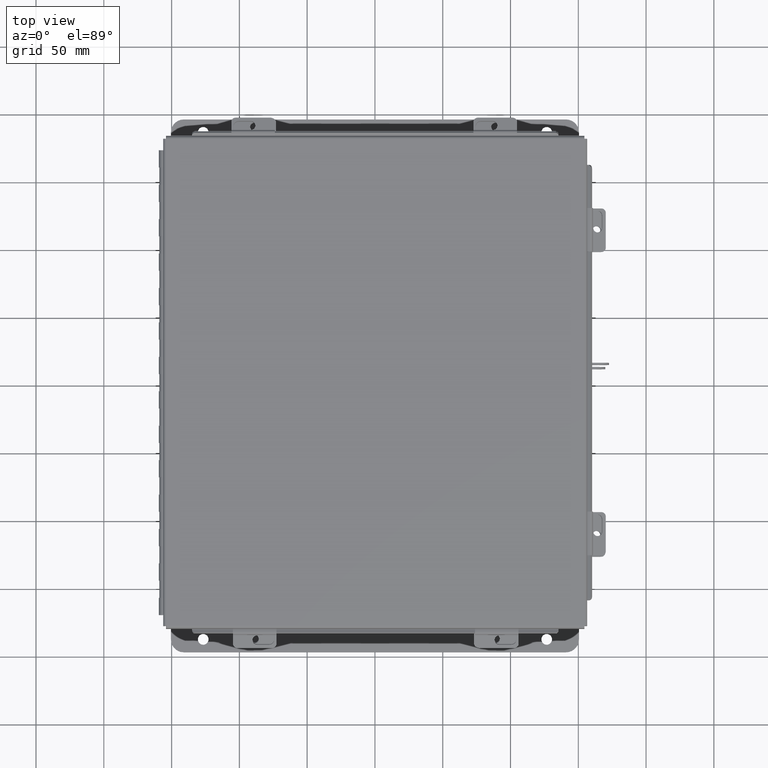
[diagram: clean part render]
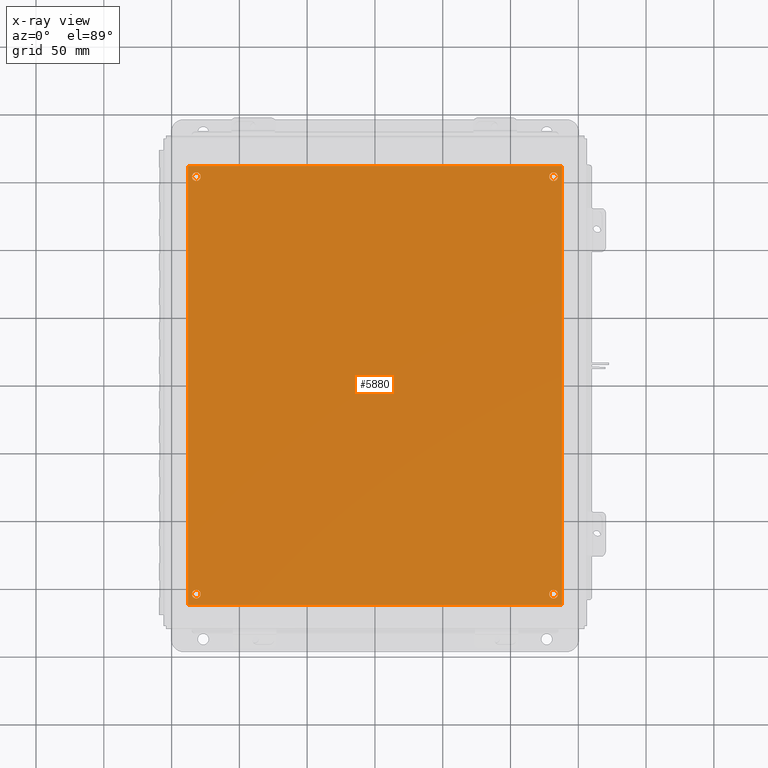
[diagram: x-ray — body ghosted, one internal face saturated and labeled with its STEP entity id]
A machine part, top view, then the same camera in x-ray: the body is ghosted and one INTERNAL B-rep face — a face not visible from any outside direction — is saturated and labeled: STEP entity #5880.
In plain terms, the highlighted planar face has unit normal (0, 0, -1).
Its self-contained STEP definition (entity closure, byte-faithful):
#156 = PLANE ( 'NONE',  #8368 ) ;
#178 = FACE_OUTER_BOUND ( 'NONE', #12491, .T. ) ;
#274 = VERTEX_POINT ( 'NONE', #7014 ) ;
#504 = VERTEX_POINT ( 'NONE', #6120 ) ;
#764 = CARTESIAN_POINT ( 'NONE',  ( 10.62500000000000400, 0.3120000000000036600, -0.07470000000000003000 ) ) ;
#767 = CARTESIAN_POINT ( 'NONE',  ( 10.50000000000000200, 12.43799999999999900, -0.07470000000000003000 ) ) ;
#1137 = DIRECTION ( 'NONE',  ( -0.0000000000000000000, -0.0000000000000000000, 1.000000000000000000 ) ) ;
#1206 = DIRECTION ( 'NONE',  ( -0.0000000000000000000, -0.0000000000000000000, 1.000000000000000000 ) ) ;
#1299 = DIRECTION ( 'NONE',  ( -1.000000000000000000, -0.0000000000000000000, -0.0000000000000000000 ) ) ;
#1346 = CIRCLE ( 'NONE', #10727, 0.1250000000000000600 ) ;
#1401 = CARTESIAN_POINT ( 'NONE',  ( 0.0000000000000000000, 12.75000000000000000, -0.07470000000000003000 ) ) ;
#1601 = CARTESIAN_POINT ( 'NONE',  ( 0.2499999999999998100, 12.43799999999999700, -0.07470000000000003000 ) ) ;
#1995 = AXIS2_PLACEMENT_3D ( 'NONE', #5326, #15551, #6803 ) ;
#2043 = DIRECTION ( 'NONE',  ( -0.0000000000000000000, -0.0000000000000000000, 1.000000000000000000 ) ) ;
#2159 = AXIS2_PLACEMENT_3D ( 'NONE', #10789, #2043, #12263 ) ;
#2170 = ORIENTED_EDGE ( 'NONE', *, *, #4804, .F. ) ;
#2250 = DIRECTION ( 'NONE',  ( -1.000000000000000000, 0.0000000000000000000, 0.0000000000000000000 ) ) ;
#2264 = EDGE_LOOP ( 'NONE', ( #9398, #10212 ) ) ;
#2531 = LINE ( 'NONE', #3623, #9819 ) ;
#2587 = EDGE_CURVE ( 'NONE', #4289, #18574, #5353, .T. ) ;
#2695 = VERTEX_POINT ( 'NONE', #7153 ) ;
#2855 = ORIENTED_EDGE ( 'NONE', *, *, #13032, .F. ) ;
#3057 = DIRECTION ( 'NONE',  ( -1.000000000000000000, 0.0000000000000000000, 0.0000000000000000000 ) ) ;
#3112 = DIRECTION ( 'NONE',  ( -1.000000000000000000, 0.0000000000000000000, -0.0000000000000000000 ) ) ;
#3469 = AXIS2_PLACEMENT_3D ( 'NONE', #14593, #5831, #16058 ) ;
#3507 = DIRECTION ( 'NONE',  ( -0.0000000000000000000, -1.000000000000000000, -0.0000000000000000000 ) ) ;
#3623 = CARTESIAN_POINT ( 'NONE',  ( 10.87500000000000000, 0.0000000000000000000, -0.07470000000000003000 ) ) ;
#3852 = EDGE_CURVE ( 'NONE', #10407, #504, #8913, .T. ) ;
#4087 = FACE_BOUND ( 'NONE', #16853, .T. ) ;
#4173 = CARTESIAN_POINT ( 'NONE',  ( 0.0000000000000000000, 0.0000000000000000000, -0.07470000000000003000 ) ) ;
#4203 = ORIENTED_EDGE ( 'NONE', *, *, #2587, .T. ) ;
#4277 = CIRCLE ( 'NONE', #5967, 0.1249999999999993500 ) ;
#4289 = VERTEX_POINT ( 'NONE', #767 ) ;
#4377 = CIRCLE ( 'NONE', #2159, 0.1249999999999993500 ) ;
#4519 = EDGE_LOOP ( 'NONE', ( #5507, #4691 ) ) ;
#4542 = FACE_BOUND ( 'NONE', #18705, .T. ) ;
#4611 = CARTESIAN_POINT ( 'NONE',  ( 10.62500000000000400, 0.3120000000000036600, -0.07470000000000003000 ) ) ;
#4691 = ORIENTED_EDGE ( 'NONE', *, *, #17573, .T. ) ;
#4804 = EDGE_CURVE ( 'NONE', #504, #11124, #2531, .T. ) ;
#4837 = VECTOR ( 'NONE', #1299, 39.37007874015748100 ) ;
#5071 = DIRECTION ( 'NONE',  ( 0.0000000000000000000, 1.000000000000000000, 0.0000000000000000000 ) ) ;
#5229 = LINE ( 'NONE', #12249, #9072 ) ;
#5291 = LINE ( 'NONE', #18835, #4837 ) ;
#5326 = CARTESIAN_POINT ( 'NONE',  ( 10.62500000000000200, 12.43799999999999900, -0.07470000000000003000 ) ) ;
#5353 = CIRCLE ( 'NONE', #1995, 0.1249999999999993500 ) ;
#5507 = ORIENTED_EDGE ( 'NONE', *, *, #15790, .T. ) ;
#5641 = EDGE_CURVE ( 'NONE', #6445, #2695, #1346, .T. ) ;
#5831 = DIRECTION ( 'NONE',  ( -0.0000000000000000000, -0.0000000000000000000, 1.000000000000000000 ) ) ;
#5880 = ADVANCED_FACE ( 'NONE', ( #15749, #7959, #4542, #4087, #178 ), #156, .T. ) ;
#5967 = AXIS2_PLACEMENT_3D ( 'NONE', #4611, #14848, #6083 ) ;
#6056 = EDGE_CURVE ( 'NONE', #7777, #10407, #5229, .T. ) ;
#6083 = DIRECTION ( 'NONE',  ( -1.000000000000000000, 0.0000000000000000000, 0.0000000000000000000 ) ) ;
#6120 = CARTESIAN_POINT ( 'NONE',  ( 10.87500000000000000, 0.0000000000000000000, -0.07470000000000003000 ) ) ;
#6445 = VERTEX_POINT ( 'NONE', #16740 ) ;
#6803 = DIRECTION ( 'NONE',  ( -1.000000000000000000, 0.0000000000000000000, 0.0000000000000000000 ) ) ;
#6957 = AXIS2_PLACEMENT_3D ( 'NONE', #1601, #11824, #3057 ) ;
#7014 = CARTESIAN_POINT ( 'NONE',  ( 0.1249999999999997900, 12.43799999999999700, -0.07470000000000003000 ) ) ;
#7153 = CARTESIAN_POINT ( 'NONE',  ( 0.1250000000000019200, 0.3120000000000015000, -0.07470000000000003000 ) ) ;
#7777 = VERTEX_POINT ( 'NONE', #1401 ) ;
#7833 = EDGE_CURVE ( 'NONE', #274, #12595, #12574, .T. ) ;
#7959 = FACE_BOUND ( 'NONE', #4519, .T. ) ;
#8368 = AXIS2_PLACEMENT_3D ( 'NONE', #10391, #11874, #3112 ) ;
#8913 = LINE ( 'NONE', #4173, #15809 ) ;
#8969 = CARTESIAN_POINT ( 'NONE',  ( 0.3749999999999998300, 12.43799999999999700, -0.07470000000000003000 ) ) ;
#9072 = VECTOR ( 'NONE', #3507, 39.37007874015748100 ) ;
#9398 = ORIENTED_EDGE ( 'NONE', *, *, #5641, .T. ) ;
#9476 = VERTEX_POINT ( 'NONE', #11476 ) ;
#9819 = VECTOR ( 'NONE', #5071, 39.37007874015748100 ) ;
#9873 = CARTESIAN_POINT ( 'NONE',  ( 0.2500000000000020000, 0.3120000000000015000, -0.07470000000000003000 ) ) ;
#9953 = CARTESIAN_POINT ( 'NONE',  ( 0.2500000000000020000, 0.3120000000000015000, -0.07470000000000003000 ) ) ;
#10212 = ORIENTED_EDGE ( 'NONE', *, *, #14140, .T. ) ;
#10391 = CARTESIAN_POINT ( 'NONE',  ( 0.0000000000000000000, 0.0000000000000000000, -0.07470000000000003000 ) ) ;
#10407 = VERTEX_POINT ( 'NONE', #11731 ) ;
#10555 = CARTESIAN_POINT ( 'NONE',  ( 10.87500000000000000, 12.75000000000000000, -0.07470000000000003000 ) ) ;
#10578 = VERTEX_POINT ( 'NONE', #18013 ) ;
#10727 = AXIS2_PLACEMENT_3D ( 'NONE', #9873, #1137, #11360 ) ;
#10789 = CARTESIAN_POINT ( 'NONE',  ( 10.62500000000000200, 12.43799999999999900, -0.07470000000000003000 ) ) ;
#10995 = DIRECTION ( 'NONE',  ( -0.0000000000000000000, -0.0000000000000000000, 1.000000000000000000 ) ) ;
#11124 = VERTEX_POINT ( 'NONE', #10555 ) ;
#11360 = DIRECTION ( 'NONE',  ( -1.000000000000000000, 0.0000000000000000000, 0.0000000000000000000 ) ) ;
#11433 = DIRECTION ( 'NONE',  ( -1.000000000000000000, 0.0000000000000000000, 0.0000000000000000000 ) ) ;
#11476 = CARTESIAN_POINT ( 'NONE',  ( 10.75000000000000400, 0.3120000000000036600, -0.07470000000000003000 ) ) ;
#11731 = CARTESIAN_POINT ( 'NONE',  ( 0.0000000000000000000, 0.0000000000000000000, -0.07470000000000003000 ) ) ;
#11824 = DIRECTION ( 'NONE',  ( -0.0000000000000000000, -0.0000000000000000000, 1.000000000000000000 ) ) ;
#11874 = DIRECTION ( 'NONE',  ( 0.0000000000000000000, 0.0000000000000000000, -1.000000000000000000 ) ) ;
#11886 = CIRCLE ( 'NONE', #17350, 0.1249999999999993500 ) ;
#12015 = EDGE_CURVE ( 'NONE', #12595, #274, #16528, .T. ) ;
#12249 = CARTESIAN_POINT ( 'NONE',  ( 0.0000000000000000000, 0.0000000000000000000, -0.07470000000000003000 ) ) ;
#12263 = DIRECTION ( 'NONE',  ( -1.000000000000000000, 0.0000000000000000000, 0.0000000000000000000 ) ) ;
#12491 = EDGE_LOOP ( 'NONE', ( #14696, #2855, #2170, #17802 ) ) ;
#12574 = CIRCLE ( 'NONE', #6957, 0.1250000000000000000 ) ;
#12595 = VERTEX_POINT ( 'NONE', #8969 ) ;
#13032 = EDGE_CURVE ( 'NONE', #11124, #7777, #5291, .T. ) ;
#13645 = AXIS2_PLACEMENT_3D ( 'NONE', #9953, #1206, #11433 ) ;
#13761 = CIRCLE ( 'NONE', #13645, 0.1250000000000000600 ) ;
#13910 = CARTESIAN_POINT ( 'NONE',  ( 10.75000000000000200, 12.43799999999999900, -0.07470000000000003000 ) ) ;
#14140 = EDGE_CURVE ( 'NONE', #2695, #6445, #13761, .T. ) ;
#14505 = EDGE_CURVE ( 'NONE', #18574, #4289, #4377, .T. ) ;
#14593 = CARTESIAN_POINT ( 'NONE',  ( 0.2499999999999998100, 12.43799999999999700, -0.07470000000000003000 ) ) ;
#14661 = ORIENTED_EDGE ( 'NONE', *, *, #7833, .T. ) ;
#14696 = ORIENTED_EDGE ( 'NONE', *, *, #6056, .F. ) ;
#14848 = DIRECTION ( 'NONE',  ( -0.0000000000000000000, -0.0000000000000000000, 1.000000000000000000 ) ) ;
#15551 = DIRECTION ( 'NONE',  ( -0.0000000000000000000, -0.0000000000000000000, 1.000000000000000000 ) ) ;
#15749 = FACE_BOUND ( 'NONE', #2264, .T. ) ;
#15790 = EDGE_CURVE ( 'NONE', #9476, #10578, #11886, .T. ) ;
#15809 = VECTOR ( 'NONE', #15857, 39.37007874015748100 ) ;
#15857 = DIRECTION ( 'NONE',  ( 1.000000000000000000, 0.0000000000000000000, 0.0000000000000000000 ) ) ;
#16058 = DIRECTION ( 'NONE',  ( -1.000000000000000000, 0.0000000000000000000, 0.0000000000000000000 ) ) ;
#16159 = ORIENTED_EDGE ( 'NONE', *, *, #12015, .T. ) ;
#16231 = ORIENTED_EDGE ( 'NONE', *, *, #14505, .T. ) ;
#16528 = CIRCLE ( 'NONE', #3469, 0.1250000000000000000 ) ;
#16740 = CARTESIAN_POINT ( 'NONE',  ( 0.3750000000000020000, 0.3120000000000015000, -0.07470000000000003000 ) ) ;
#16853 = EDGE_LOOP ( 'NONE', ( #16159, #14661 ) ) ;
#17350 = AXIS2_PLACEMENT_3D ( 'NONE', #764, #10995, #2250 ) ;
#17573 = EDGE_CURVE ( 'NONE', #10578, #9476, #4277, .T. ) ;
#17802 = ORIENTED_EDGE ( 'NONE', *, *, #3852, .F. ) ;
#18013 = CARTESIAN_POINT ( 'NONE',  ( 10.50000000000000400, 0.3120000000000036600, -0.07470000000000003000 ) ) ;
#18574 = VERTEX_POINT ( 'NONE', #13910 ) ;
#18705 = EDGE_LOOP ( 'NONE', ( #16231, #4203 ) ) ;
#18835 = CARTESIAN_POINT ( 'NONE',  ( 0.0000000000000000000, 12.75000000000000000, -0.07470000000000003000 ) ) ;